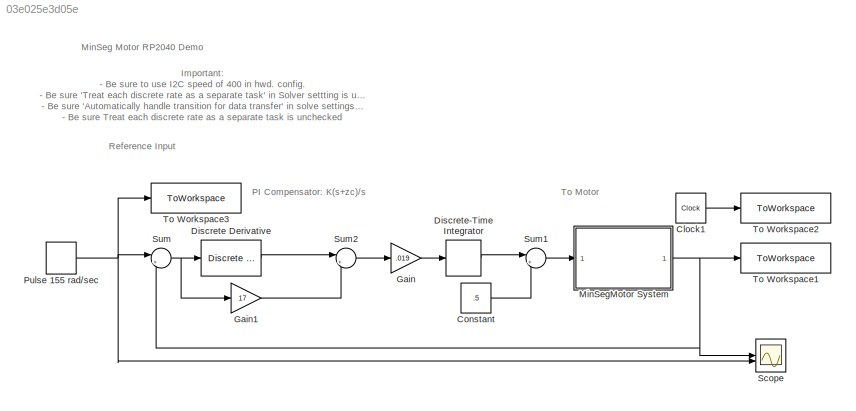
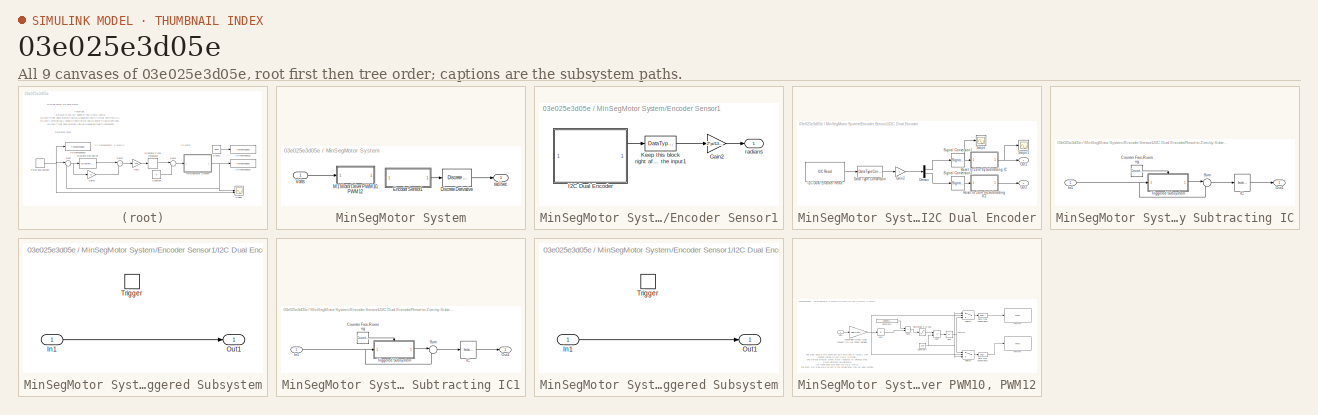
[diagram: thumbnail index - all 9 canvases of the model, root first then tree order]
MODEL slx_03e025e3d05e
KIND model
CONFIG AbsTol = auto
CONFIG EnableMultiTasking = on
CONFIG FixedStep = auto
CONFIG MaxStep = auto
CONFIG MinStep = auto
CONFIG RelTol = 1e-3
CONFIG SampleTimeConstraint = Unconstrained
CONFIG SolverName = ode45
CONFIG StartTime = 0.0
CONFIG StopTime = 10.0
BLOCK [Clock] Clock1
BLOCK [Constant] Constant
  Value = .5
BLOCK [Reference] Discrete Derivative  REF=simulink/Discrete/Discrete Derivative
  SourceBlock = simulink/Discrete/Discrete Derivative
  SourceType = Discrete Derivative
BLOCK [DiscreteIntegrator] Discrete-Time Integrator
  ICPrevOutput = DiscIntNeverNeededParam
  ICPrevScaledInput = DiscIntNeverNeededParam
  InitialConditionSetting = Auto
  SampleTime = -1
BLOCK [Gain] Gain
  Gain = .019
BLOCK [Gain] Gain1
  Gain = 17
BLOCK [SubSystem] MinSegMotor System
BLOCK [Reference] MinSegMotor System/Discrete Derivative  REF=simulink/Discrete/Discrete Derivative
  SourceBlock = simulink/Discrete/Discrete Derivative
  SourceType = Discrete Derivative
BLOCK [SubSystem] MinSegMotor System/Encoder Sensor1
BLOCK [Gain] MinSegMotor System/Encoder Sensor1/Gain2
  Gain = 2*pi/1336
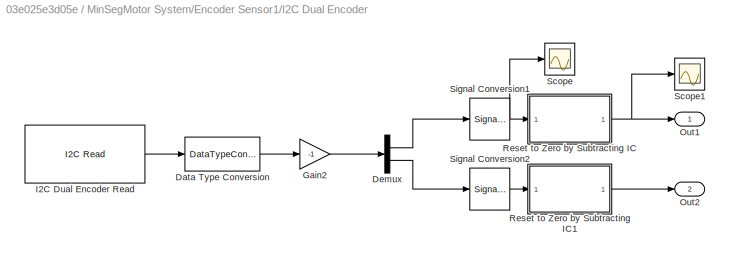
BLOCK [SubSystem] MinSegMotor System/Encoder Sensor1/I2C Dual Encoder
BLOCK [DataTypeConversion] MinSegMotor System/Encoder Sensor1/I2C Dual Encoder/Data Type Conversion
  OutDataTypeStr = double
  RndMeth = Floor
  SaturateOnIntegerOverflow = off
BLOCK [Demux] MinSegMotor System/Encoder Sensor1/I2C Dual Encoder/Demux
  Outputs = 2
BLOCK [Gain] MinSegMotor System/Encoder Sensor1/I2C Dual Encoder/Gain2
  Gain = -1
BLOCK [Reference] MinSegMotor System/Encoder Sensor1/I2C Dual Encoder/I2C Dual Encoder Read  REF=arduinolib/I2C Read
  SourceBlock = arduinolib/I2C Read
  SourceType = I2C Read
BLOCK [Outport] MinSegMotor System/Encoder Sensor1/I2C Dual Encoder/Out1
BLOCK [Outport] MinSegMotor System/Encoder Sensor1/I2C Dual Encoder/Out2
  Port = 2
BLOCK [SubSystem] MinSegMotor System/Encoder Sensor1/I2C Dual Encoder/Reset to Zero by Subtracting IC
BLOCK [Reference] MinSegMotor System/Encoder Sensor1/I2C Dual Encoder/Reset to Zero by Subtracting IC/Counter Free-Running  REF=simulink/Sources/Counter
Free-Running
  SourceBlock = simulink/Sources/Counter\nFree-Running
  SourceType = Counter Free-Running
BLOCK [InitialCondition] MinSegMotor System/Encoder Sensor1/I2C Dual Encoder/Reset to Zero by Subtracting IC/IC
  Value = 0
BLOCK [Inport] MinSegMotor System/Encoder Sensor1/I2C Dual Encoder/Reset to Zero by Subtracting IC/In1
BLOCK [Outport] MinSegMotor System/Encoder Sensor1/I2C Dual Encoder/Reset to Zero by Subtracting IC/Out1
BLOCK [Sum] MinSegMotor System/Encoder Sensor1/I2C Dual Encoder/Reset to Zero by Subtracting IC/Sum
  Inputs = |-+
BLOCK [SubSystem] MinSegMotor System/Encoder Sensor1/I2C Dual Encoder/Reset to Zero by Subtracting IC/Triggered Subsystem
  TreatAsAtomicUnit = on
BLOCK [Inport] MinSegMotor System/Encoder Sensor1/I2C Dual Encoder/Reset to Zero by Subtracting IC/Triggered Subsystem/In1
BLOCK [Outport] MinSegMotor System/Encoder Sensor1/I2C Dual Encoder/Reset to Zero by Subtracting IC/Triggered Subsystem/Out1
BLOCK [TriggerPort] MinSegMotor System/Encoder Sensor1/I2C Dual Encoder/Reset to Zero by Subtracting IC/Triggered Subsystem/Trigger
  StatesWhenEnabling = held
  VariantControl = (inherit)
BLOCK [SubSystem] MinSegMotor System/Encoder Sensor1/I2C Dual Encoder/Reset to Zero by Subtracting IC1
BLOCK [Reference] MinSegMotor System/Encoder Sensor1/I2C Dual Encoder/Reset to Zero by Subtracting IC1/Counter Free-Running  REF=simulink/Sources/Counter
Free-Running
  SourceBlock = simulink/Sources/Counter\nFree-Running
  SourceType = Counter Free-Running
BLOCK [InitialCondition] MinSegMotor System/Encoder Sensor1/I2C Dual Encoder/Reset to Zero by Subtracting IC1/IC
  Value = 0
BLOCK [Inport] MinSegMotor System/Encoder Sensor1/I2C Dual Encoder/Reset to Zero by Subtracting IC1/In1
BLOCK [Outport] MinSegMotor System/Encoder Sensor1/I2C Dual Encoder/Reset to Zero by Subtracting IC1/Out1
BLOCK [Sum] MinSegMotor System/Encoder Sensor1/I2C Dual Encoder/Reset to Zero by Subtracting IC1/Sum
  Inputs = |-+
BLOCK [SubSystem] MinSegMotor System/Encoder Sensor1/I2C Dual Encoder/Reset to Zero by Subtracting IC1/Triggered Subsystem
  TreatAsAtomicUnit = on
BLOCK [Inport] MinSegMotor System/Encoder Sensor1/I2C Dual Encoder/Reset to Zero by Subtracting IC1/Triggered Subsystem/In1
BLOCK [Outport] MinSegMotor System/Encoder Sensor1/I2C Dual Encoder/Reset to Zero by Subtracting IC1/Triggered Subsystem/Out1
BLOCK [TriggerPort] MinSegMotor System/Encoder Sensor1/I2C Dual Encoder/Reset to Zero by Subtracting IC1/Triggered Subsystem/Trigger
  StatesWhenEnabling = held
  VariantControl = (inherit)
BLOCK [Scope] MinSegMotor System/Encoder Sensor1/I2C Dual Encoder/Scope
  ActiveDisplayYMaximum = -4.4059855E+6
  ActiveDisplayYMinimum = -4.5575305E+6
  DataLoggingVariableName = ScopeData1
  Floating = off
  GraphicalSettings = {"GraphicalSettings":{"LegacySettings":true,"Style":{"Style":{"AxesColor":"[0 0 0]","ChannelNames":[""],"ColorOrder":"[1 0.909803921568627 0.392156862745098;0.149019607843137 0.549019607843137 0.866666666666667;0.96078431372549 0.466666666666667 0.16078431372549;0.286274509803922 0.858823529411765 0.250980392156863;0.752941176470588 0.36078431372549 0.984313725490196;0.423529411764706 0.9568627450...<+476ch>
  MultipleDisplayCache = [{"MaxYLimMag":4.5575305E+6,"MaxYLimReal":-4.4059855E+6,"MinYLimMag":0,"MinYLimReal":-4.5575305E+6,"PlotAsMagnitudePhase":false,"ShowGrid":true,"ShowLegend":false,"Title":"%<SignalLabel>","YLabel":""}]
  NumInputPorts = 1
  WasSavedAsWebScope = on
BLOCK [Scope] MinSegMotor System/Encoder Sensor1/I2C Dual Encoder/Scope1
  ActiveDisplayYMaximum = 136389.375
  ActiveDisplayYMinimum = -15154.375
  DataLoggingVariableName = ScopeData2
  Floating = off
  GraphicalSettings = {"GraphicalSettings":{"LegacySettings":true,"Style":{"Style":{"AxesColor":"[0 0 0]","ChannelNames":[""],"ColorOrder":"[1 0.909803921568627 0.392156862745098;0.149019607843137 0.549019607843137 0.866666666666667;0.96078431372549 0.466666666666667 0.16078431372549;0.286274509803922 0.858823529411765 0.250980392156863;0.752941176470588 0.36078431372549 0.984313725490196;0.423529411764706 0.9568627450...<+476ch>
  MultipleDisplayCache = [{"MaxYLimMag":136389.375,"MaxYLimReal":136389.375,"MinYLimMag":0,"MinYLimReal":-15154.375,"PlotAsMagnitudePhase":false,"ShowGrid":true,"ShowLegend":false,"Title":"%<SignalLabel>","YLabel":""}]
  NumInputPorts = 1
  WasSavedAsWebScope = on
BLOCK [SignalConversion] MinSegMotor System/Encoder Sensor1/I2C Dual Encoder/Signal Conversion1
  OverrideOpt = off
BLOCK [SignalConversion] MinSegMotor System/Encoder Sensor1/I2C Dual Encoder/Signal Conversion2
  OverrideOpt = off
BLOCK [DataTypeConversion] MinSegMotor System/Encoder Sensor1/Keep this block right after the input1
  OutDataTypeStr = double
  RndMeth = Floor
  SaturateOnIntegerOverflow = off
BLOCK [Outport] MinSegMotor System/Encoder Sensor1/radians
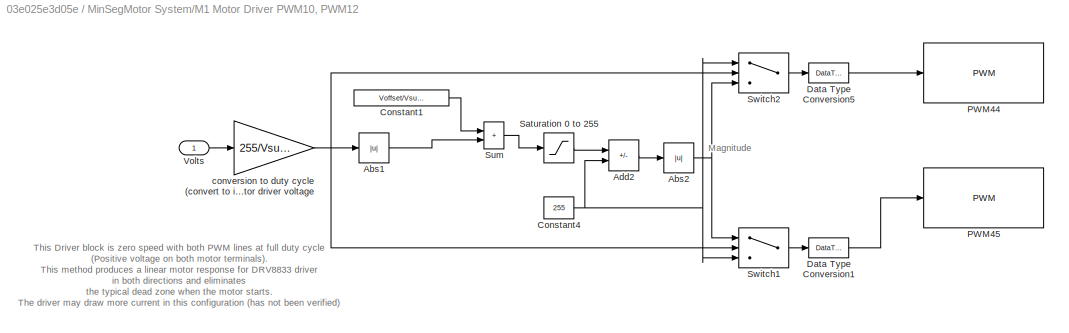
BLOCK [SubSystem] MinSegMotor System/M1 Motor Driver PWM10, PWM12
BLOCK [Abs] MinSegMotor System/M1 Motor Driver PWM10, PWM12/Abs1
  SaturateOnIntegerOverflow = off
BLOCK [Abs] MinSegMotor System/M1 Motor Driver PWM10, PWM12/Abs2
  SaturateOnIntegerOverflow = off
BLOCK [Sum] MinSegMotor System/M1 Motor Driver PWM10, PWM12/Add2
  IconShape = rectangular
  Inputs = -+
BLOCK [Constant] MinSegMotor System/M1 Motor Driver PWM10, PWM12/Constant1
  Value = Voffset/Vsupply*255
BLOCK [Constant] MinSegMotor System/M1 Motor Driver PWM10, PWM12/Constant4
  Value = 255
BLOCK [DataTypeConversion] MinSegMotor System/M1 Motor Driver PWM10, PWM12/Data Type Conversion1
  OutDataTypeStr = uint8
  RndMeth = Floor
  SaturateOnIntegerOverflow = off
BLOCK [DataTypeConversion] MinSegMotor System/M1 Motor Driver PWM10, PWM12/Data Type Conversion5
  OutDataTypeStr = uint8
  RndMeth = Floor
  SaturateOnIntegerOverflow = off
BLOCK [Reference] MinSegMotor System/M1 Motor Driver PWM10, PWM12/PWM44  REF=arduinolib/PWM
  SourceBlock = arduinolib/PWM
  SourceType = Arduino PWM
BLOCK [Reference] MinSegMotor System/M1 Motor Driver PWM10, PWM12/PWM45  REF=arduinolib/PWM
  SourceBlock = arduinolib/PWM
  SourceType = Arduino PWM
BLOCK [Saturate] MinSegMotor System/M1 Motor Driver PWM10, PWM12/Saturation 0 to 255
  LowerLimit = 0
  UpperLimit = 255
BLOCK [Sum] MinSegMotor System/M1 Motor Driver PWM10, PWM12/Sum
  IconShape = rectangular
BLOCK [Switch] MinSegMotor System/M1 Motor Driver PWM10, PWM12/Switch1
  InputSameDT = off
  SaturateOnIntegerOverflow = off
BLOCK [Switch] MinSegMotor System/M1 Motor Driver PWM10, PWM12/Switch2
  InputSameDT = off
  SaturateOnIntegerOverflow = off
BLOCK [Inport] MinSegMotor System/M1 Motor Driver PWM10, PWM12/Volts
BLOCK [Gain] MinSegMotor System/M1 Motor Driver PWM10, PWM12/conversion to duty cycle (convert to int) denominator is motor driver voltage
  Gain = 255/Vsupply
  OutDataTypeStr = int16
BLOCK [Inport] MinSegMotor System/Volts
BLOCK [Outport] MinSegMotor System/rad.//sec
BLOCK [DiscretePulseGenerator] Pulse 155 rad//sec
  Amplitude = 155
  Period = 4
  PulseType = Time based
  PulseWidth = 50
BLOCK [Scope] Scope
  ActiveDisplayYMaximum = 182.68149646388963
  ActiveDisplayYMinimum = -21.604328222194336
  Floating = off
  GraphicalSettings = {"Style":{"BackgroundColor":[0.12941176470588237,0.12941176470588237,0.12941176470588237],"AxesColor":[0.07058823529411765,0.07058823529411765,0.07058823529411765],"LabelsColor":[0.8509803921568627,0.8509803921568627,0.8509803921568627],"PreserveColors":false,"Visible":[true,true],"LineStyle":["-","-"],"LineWidth":[1.5,1.5],"BarWidth":[0.9,0.9],"LineColor":["auto","auto"],"LineFaceAlpha":[1,1],"Li...<+2084ch>
  MultipleDisplayCache = [{"MaxYLimMag":182.68149646388963,"MaxYLimReal":182.68149646388963,"MinYLimMag":0,"MinYLimReal":-21.604328222194336,"PlotAsMagnitudePhase":false,"ShowGrid":true,"ShowLegend":false,"Title":"%<SignalLabel>","YLabel":""}]
  NumInputPorts = 2
  ScopeFrameLocation = window
  TimeSpanOverrunAction = Scroll
  Visible = on
  WasSavedAsWebScope = on
  WindowPosition = [1693.000000,435.000000,612.000000,842.000000,]
BLOCK [Sum] Sum
  Inputs = |+-
BLOCK [Sum] Sum1
  Inputs = |++
BLOCK [Sum] Sum2
  Inputs = |++
BLOCK [ToWorkspace] To Workspace1
  FixptAsFi = on
  MaxDataPoints = inf
  SampleTime = -1
  Save2DSignal = 2-D array (concatenate along first dimension)
  VariableName = W
BLOCK [ToWorkspace] To Workspace2
  FixptAsFi = on
  MaxDataPoints = inf
  SampleTime = -1
  Save2DSignal = 2-D array (concatenate along first dimension)
  VariableName = t
BLOCK [ToWorkspace] To Workspace3
  FixptAsFi = on
  MaxDataPoints = inf
  SampleTime = -1
  Save2DSignal = 2-D array (concatenate along first dimension)
  VariableName = R
ANNOTATION (root): Important: - Be sure to use I2C speed of 400 in hwd. config. - Be sure 'Treat each discrete rate as a separate task' in Solver settting is unchecked - Be sure 'Automatically handle transition for data transfer' in solve settings is unchecked - Be sure Treat each discrete rate as a separate task is unchecked
ANNOTATION (root): PI Compensator: K(s+zc)/s
ANNOTATION (root): Reference Input
ANNOTATION (root): To Motor
ANNOTATION (root): MinSeg Motor RP2040 Demo
ANNOTATION MinSegMotor System/M1 Motor Driver PWM10, PWM12: Magnitude
ANNOTATION MinSegMotor System/M1 Motor Driver PWM10, PWM12: This Driver block is zero speed with both PWM lines at full duty cycle (Positive voltage on both motor terminals). This method produces a linear motor response for DRV8833 driver in both directions and eliminates the typical dead zone when the motor starts. The driver may draw more current in this configuration (has not been verified) The SN754410 driver this has no effect, so the driver could alt...<+76ch>
LINE Clock1:1 -> To Workspace2:1
LINE Constant:1 -> Sum1:2
LINE Discrete Derivative:1 -> Sum2:1
LINE Discrete-Time Integrator:1 -> Sum1:1
LINE Gain1:1 -> Sum2:2
LINE Gain:1 -> Discrete-Time Integrator:1
LINE MinSegMotor System/Discrete Derivative:1 -> MinSegMotor System/rad.//sec:1
LINE MinSegMotor System/Encoder Sensor1/Gain2:1 -> MinSegMotor System/Encoder Sensor1/radians:1
LINE MinSegMotor System/Encoder Sensor1/I2C Dual Encoder/Data Type Conversion:1 -> MinSegMotor System/Encoder Sensor1/I2C Dual Encoder/Gain2:1
LINE MinSegMotor System/Encoder Sensor1/I2C Dual Encoder/Demux:1 -> MinSegMotor System/Encoder Sensor1/I2C Dual Encoder/Signal Conversion1:1
LINE MinSegMotor System/Encoder Sensor1/I2C Dual Encoder/Demux:2 -> MinSegMotor System/Encoder Sensor1/I2C Dual Encoder/Signal Conversion2:1
LINE MinSegMotor System/Encoder Sensor1/I2C Dual Encoder/Gain2:1 -> MinSegMotor System/Encoder Sensor1/I2C Dual Encoder/Demux:1
LINE MinSegMotor System/Encoder Sensor1/I2C Dual Encoder/I2C Dual Encoder Read:1 -> MinSegMotor System/Encoder Sensor1/I2C Dual Encoder/Data Type Conversion:1
LINE MinSegMotor System/Encoder Sensor1/I2C Dual Encoder/Reset to Zero by Subtracting IC/Counter Free-Running:1 -> MinSegMotor System/Encoder Sensor1/I2C Dual Encoder/Reset to Zero by Subtracting IC/Triggered Subsystem:trigger
LINE MinSegMotor System/Encoder Sensor1/I2C Dual Encoder/Reset to Zero by Subtracting IC/IC:1 -> MinSegMotor System/Encoder Sensor1/I2C Dual Encoder/Reset to Zero by Subtracting IC/Out1:1
NET MinSegMotor System/Encoder Sensor1/I2C Dual Encoder/Reset to Zero by Subtracting IC/In1:1 -> MinSegMotor System/Encoder Sensor1/I2C Dual Encoder/Reset to Zero by Subtracting IC/Sum:2, MinSegMotor System/Encoder Sensor1/I2C Dual Encoder/Reset to Zero by Subtracting IC/Triggered Subsystem:1
LINE MinSegMotor System/Encoder Sensor1/I2C Dual Encoder/Reset to Zero by Subtracting IC/Sum:1 -> MinSegMotor System/Encoder Sensor1/I2C Dual Encoder/Reset to Zero by Subtracting IC/IC:1
LINE MinSegMotor System/Encoder Sensor1/I2C Dual Encoder/Reset to Zero by Subtracting IC/Triggered Subsystem/In1:1 -> MinSegMotor System/Encoder Sensor1/I2C Dual Encoder/Reset to Zero by Subtracting IC/Triggered Subsystem/Out1:1
LINE MinSegMotor System/Encoder Sensor1/I2C Dual Encoder/Reset to Zero by Subtracting IC/Triggered Subsystem:1 -> MinSegMotor System/Encoder Sensor1/I2C Dual Encoder/Reset to Zero by Subtracting IC/Sum:1
LINE MinSegMotor System/Encoder Sensor1/I2C Dual Encoder/Reset to Zero by Subtracting IC1/Counter Free-Running:1 -> MinSegMotor System/Encoder Sensor1/I2C Dual Encoder/Reset to Zero by Subtracting IC1/Triggered Subsystem:trigger
LINE MinSegMotor System/Encoder Sensor1/I2C Dual Encoder/Reset to Zero by Subtracting IC1/IC:1 -> MinSegMotor System/Encoder Sensor1/I2C Dual Encoder/Reset to Zero by Subtracting IC1/Out1:1
NET MinSegMotor System/Encoder Sensor1/I2C Dual Encoder/Reset to Zero by Subtracting IC1/In1:1 -> MinSegMotor System/Encoder Sensor1/I2C Dual Encoder/Reset to Zero by Subtracting IC1/Sum:2, MinSegMotor System/Encoder Sensor1/I2C Dual Encoder/Reset to Zero by Subtracting IC1/Triggered Subsystem:1
LINE MinSegMotor System/Encoder Sensor1/I2C Dual Encoder/Reset to Zero by Subtracting IC1/Sum:1 -> MinSegMotor System/Encoder Sensor1/I2C Dual Encoder/Reset to Zero by Subtracting IC1/IC:1
LINE MinSegMotor System/Encoder Sensor1/I2C Dual Encoder/Reset to Zero by Subtracting IC1/Triggered Subsystem/In1:1 -> MinSegMotor System/Encoder Sensor1/I2C Dual Encoder/Reset to Zero by Subtracting IC1/Triggered Subsystem/Out1:1
LINE MinSegMotor System/Encoder Sensor1/I2C Dual Encoder/Reset to Zero by Subtracting IC1/Triggered Subsystem:1 -> MinSegMotor System/Encoder Sensor1/I2C Dual Encoder/Reset to Zero by Subtracting IC1/Sum:1
LINE MinSegMotor System/Encoder Sensor1/I2C Dual Encoder/Reset to Zero by Subtracting IC1:1 -> MinSegMotor System/Encoder Sensor1/I2C Dual Encoder/Out2:1
NET MinSegMotor System/Encoder Sensor1/I2C Dual Encoder/Reset to Zero by Subtracting IC:1 -> MinSegMotor System/Encoder Sensor1/I2C Dual Encoder/Out1:1, MinSegMotor System/Encoder Sensor1/I2C Dual Encoder/Scope1:1
NET MinSegMotor System/Encoder Sensor1/I2C Dual Encoder/Signal Conversion1:1 -> MinSegMotor System/Encoder Sensor1/I2C Dual Encoder/Reset to Zero by Subtracting IC:1, MinSegMotor System/Encoder Sensor1/I2C Dual Encoder/Scope:1
LINE MinSegMotor System/Encoder Sensor1/I2C Dual Encoder/Signal Conversion2:1 -> MinSegMotor System/Encoder Sensor1/I2C Dual Encoder/Reset to Zero by Subtracting IC1:1
LINE MinSegMotor System/Encoder Sensor1/I2C Dual Encoder:1 -> MinSegMotor System/Encoder Sensor1/Keep this block right after the input1:1
LINE MinSegMotor System/Encoder Sensor1/Keep this block right after the input1:1 -> MinSegMotor System/Encoder Sensor1/Gain2:1
LINE MinSegMotor System/Encoder Sensor1:1 -> MinSegMotor System/Discrete Derivative:1
LINE MinSegMotor System/M1 Motor Driver PWM10, PWM12/Abs1:1 -> MinSegMotor System/M1 Motor Driver PWM10, PWM12/Sum:2
NET MinSegMotor System/M1 Motor Driver PWM10, PWM12/Abs2:1 -> MinSegMotor System/M1 Motor Driver PWM10, PWM12/Switch1:1, MinSegMotor System/M1 Motor Driver PWM10, PWM12/Switch2:3
LINE MinSegMotor System/M1 Motor Driver PWM10, PWM12/Add2:1 -> MinSegMotor System/M1 Motor Driver PWM10, PWM12/Abs2:1
LINE MinSegMotor System/M1 Motor Driver PWM10, PWM12/Constant1:1 -> MinSegMotor System/M1 Motor Driver PWM10, PWM12/Sum:1
NET MinSegMotor System/M1 Motor Driver PWM10, PWM12/Constant4:1 -> MinSegMotor System/M1 Motor Driver PWM10, PWM12/Add2:2, MinSegMotor System/M1 Motor Driver PWM10, PWM12/Switch1:3, MinSegMotor System/M1 Motor Driver PWM10, PWM12/Switch2:1
LINE MinSegMotor System/M1 Motor Driver PWM10, PWM12/Data Type Conversion1:1 -> MinSegMotor System/M1 Motor Driver PWM10, PWM12/PWM45:1
LINE MinSegMotor System/M1 Motor Driver PWM10, PWM12/Data Type Conversion5:1 -> MinSegMotor System/M1 Motor Driver PWM10, PWM12/PWM44:1
LINE MinSegMotor System/M1 Motor Driver PWM10, PWM12/Saturation 0 to 255:1 -> MinSegMotor System/M1 Motor Driver PWM10, PWM12/Add2:1
LINE MinSegMotor System/M1 Motor Driver PWM10, PWM12/Sum:1 -> MinSegMotor System/M1 Motor Driver PWM10, PWM12/Saturation 0 to 255:1
LINE MinSegMotor System/M1 Motor Driver PWM10, PWM12/Switch1:1 -> MinSegMotor System/M1 Motor Driver PWM10, PWM12/Data Type Conversion1:1
LINE MinSegMotor System/M1 Motor Driver PWM10, PWM12/Switch2:1 -> MinSegMotor System/M1 Motor Driver PWM10, PWM12/Data Type Conversion5:1
LINE MinSegMotor System/M1 Motor Driver PWM10, PWM12/Volts:1 -> MinSegMotor System/M1 Motor Driver PWM10, PWM12/conversion to duty cycle (convert to int) denominator is motor driver voltage:1
NET MinSegMotor System/M1 Motor Driver PWM10, PWM12/conversion to duty cycle (convert to int) denominator is motor driver voltage:1 -> MinSegMotor System/M1 Motor Driver PWM10, PWM12/Abs1:1, MinSegMotor System/M1 Motor Driver PWM10, PWM12/Switch1:2, MinSegMotor System/M1 Motor Driver PWM10, PWM12/Switch2:2
LINE MinSegMotor System/Volts:1 -> MinSegMotor System/M1 Motor Driver PWM10, PWM12:1
NET MinSegMotor System:1 -> Scope:1, Sum:2, To Workspace1:1
NET Pulse 155 rad//sec:1 -> Scope:2, Sum:1, To Workspace3:1
LINE Sum1:1 -> MinSegMotor System:1
LINE Sum2:1 -> Gain:1
NET Sum:1 -> Discrete Derivative:1, Gain1:1
note: NET lines group one-source signal fan-out (src -> all destinations, sorted); 1:1 wires keep LINE
